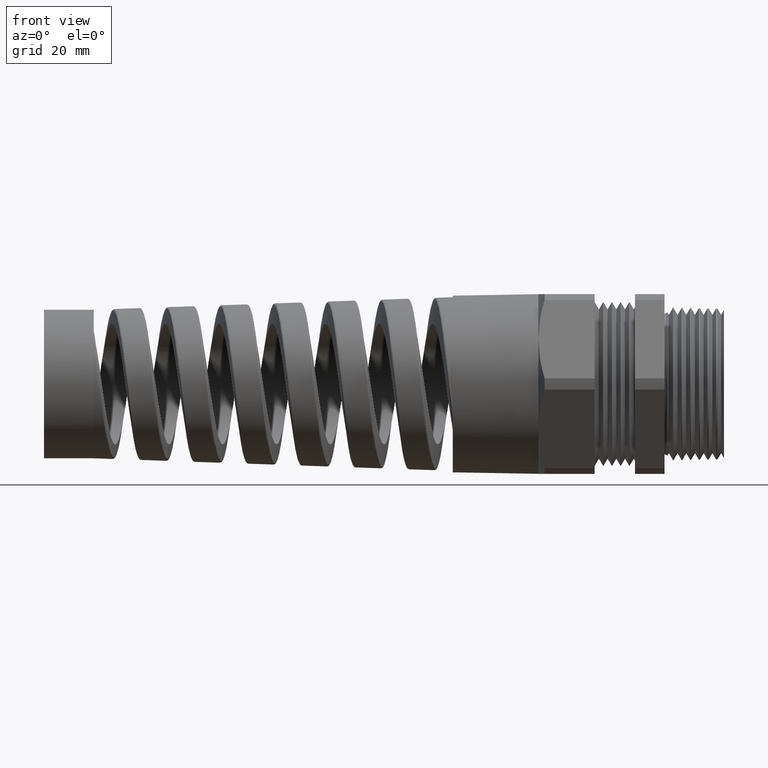
[diagram: clean part render]
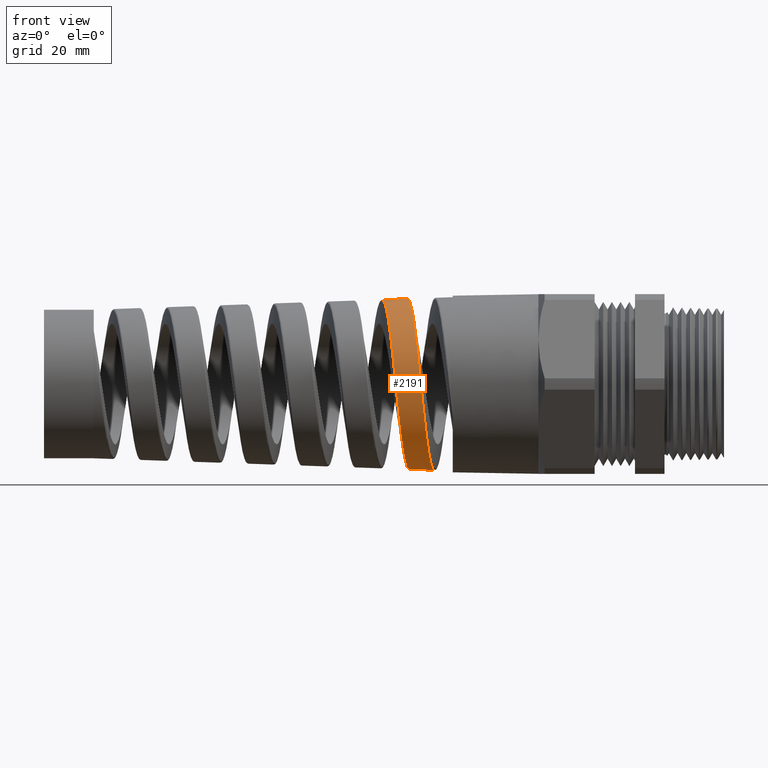
[diagram: same view with one face highlighted and labeled with its STEP entity id]
A machine part, front view. The second image highlights one B-rep face of the part: STEP entity #2191.
In plain terms, the highlighted conical surface has half-angle 2.001 deg.
Its self-contained STEP definition (entity closure, byte-faithful):
#1295 = VERTEX_POINT ( 'NONE', #3690 ) ;
#1320 = VERTEX_POINT ( 'NONE', #3689 ) ;
#1434 = EDGE_CURVE ( 'NONE', #1295, #1320, #4977, .T. ) ;
#2189 = EDGE_LOOP ( 'NONE', ( #2192, #6026, #6025, #6037 ) ) ;
#2191 = ADVANCED_FACE ( 'NONE', ( #10259 ), #10257, .T. ) ;
#2192 = ORIENTED_EDGE ( 'NONE', *, *, #1434, .F. ) ;
#2714 = VERTEX_POINT ( 'NONE', #11269 ) ;
#2724 = VERTEX_POINT ( 'NONE', #11374 ) ;
#2751 = EDGE_CURVE ( 'NONE', #2714, #2724, #11637, .T. ) ;
#3689 = CARTESIAN_POINT ( 'NONE',  ( -1.860031457584232100, 3.816265048397809600E-016, 0.6169013725348223600 ) ) ;
#3690 = CARTESIAN_POINT ( 'NONE',  ( -2.041595713994794400, 5.404285057037586800E-013, 0.6105590736741104400 ) ) ;
#4974 = DIRECTION ( 'NONE',  ( 0.9993904554178625300, 4.275258673359075800E-018, 0.03491013634572578300 ) ) ;
#4975 = VECTOR ( 'NONE', #4974, 39.37007874015748900 ) ;
#4976 = CARTESIAN_POINT ( 'NONE',  ( -0.9125000000000002000, 7.960204194457793000E-017, 0.6499999999999998000 ) ) ;
#4977 = LINE ( 'NONE', #4976, #4975 ) ;
#6016 = EDGE_CURVE ( 'NONE', #2724, #1320, #12136, .T. ) ;
#6019 = EDGE_CURVE ( 'NONE', #1295, #2714, #12163, .T. ) ;
#6025 = ORIENTED_EDGE ( 'NONE', *, *, #2751, .T. ) ;
#6026 = ORIENTED_EDGE ( 'NONE', *, *, #6019, .T. ) ;
#6037 = ORIENTED_EDGE ( 'NONE', *, *, #6016, .T. ) ;
#10254 = DIRECTION ( 'NONE',  ( 0.0000000000000000000, 0.0000000000000000000, -1.000000000000000000 ) ) ;
#10255 = DIRECTION ( 'NONE',  ( 1.000000000000000000, 0.0000000000000000000, 0.0000000000000000000 ) ) ;
#10256 = AXIS2_PLACEMENT_3D ( 'NONE', #10258, #10255, #10254 ) ;
#10257 = CONICAL_SURFACE ( 'NONE', #10256, 0.6499999999999998000, 0.03491723117042443800 ) ;
#10258 = CARTESIAN_POINT ( 'NONE',  ( -0.9125000000000002000, 0.0000000000000000000, 0.0000000000000000000 ) ) ;
#10259 = FACE_OUTER_BOUND ( 'NONE', #2189, .T. ) ;
#11269 = CARTESIAN_POINT ( 'NONE',  ( -1.847675430216727100, 1.499156792690667000E-016, -0.6173329862226985000 ) ) ;
#11374 = CARTESIAN_POINT ( 'NONE',  ( -1.666082610483241800, -5.664522266744173700E-013, -0.6236762828410858900 ) ) ;
#11468 = CARTESIAN_POINT ( 'NONE',  ( -1.728471664641059600, -0.5267763392081741300, -0.3304148715152940300 ) ) ;
#11469 = CARTESIAN_POINT ( 'NONE',  ( -1.722448705378324600, -0.4930644986935345300, -0.3808448498656335500 ) ) ;
#11637 = LINE ( 'NONE', #11719, #11718 ) ;
#11717 = DIRECTION ( 'NONE',  ( 0.9993904554178625300, 0.0000000000000000000, -0.03491013634572578300 ) ) ;
#11718 = VECTOR ( 'NONE', #11717, 39.37007874015748900 ) ;
#11719 = CARTESIAN_POINT ( 'NONE',  ( -0.9125000000000002000, 0.0000000000000000000, -0.6499999999999998000 ) ) ;
#11758 = CARTESIAN_POINT ( 'NONE',  ( -1.742631796956128700, -0.5885549032456304200, -0.2022251774938682600 ) ) ;
#11760 = CARTESIAN_POINT ( 'NONE',  ( -1.736578143625106000, -0.5652480150011247600, -0.2584825724395086700 ) ) ;
#11761 = CARTESIAN_POINT ( 'NONE',  ( -1.734539435105767700, -0.5564701984895908900, -0.2770419630630266400 ) ) ;
#11798 = CARTESIAN_POINT ( 'NONE',  ( -1.730484039348056300, -0.5372190819630802100, -0.3130224154334005900 ) ) ;
#12120 = CARTESIAN_POINT ( 'NONE',  ( -1.718451794485263300, -0.4674343389328120000, -0.4121514692766922200 ) ) ;
#12121 = CARTESIAN_POINT ( 'NONE',  ( -1.712365573981226700, -0.4241153060394268800, -0.4555236657616942300 ) ) ;
#12122 = CARTESIAN_POINT ( 'NONE',  ( -1.710334611555485600, -0.4089428994683624900, -0.4692795736045588000 ) ) ;
#12123 = CARTESIAN_POINT ( 'NONE',  ( -1.706310044807840800, -0.3776020432339837800, -0.4950244973315542400 ) ) ;
#12124 = CARTESIAN_POINT ( 'NONE',  ( -1.704307596544266400, -0.3613709062349941800, -0.5070774394052465200 ) ) ;
#12125 = CARTESIAN_POINT ( 'NONE',  ( -1.700301427241697400, -0.3278021576401986000, -0.5295624691940955500 ) ) ;
#12126 = CARTESIAN_POINT ( 'NONE',  ( -1.698297760841855700, -0.3104645536822029900, -0.5399945777537554800 ) ) ;
#12127 = CARTESIAN_POINT ( 'NONE',  ( -1.694269257517449800, -0.2746663204652860500, -0.5592101820937768200 ) ) ;
#12128 = CARTESIAN_POINT ( 'NONE',  ( -1.692233174902068700, -0.2560991532685572000, -0.5680335686453036300 ) ) ;
#12129 = CARTESIAN_POINT ( 'NONE',  ( -1.686170363617713400, -0.1996469148310838200, -0.5915234923648924300 ) ) ;
#12130 = CARTESIAN_POINT ( 'NONE',  ( -1.682184242790040400, -0.1609771524271892700, -0.6033204238952739600 ) ) ;
#12131 = CARTESIAN_POINT ( 'NONE',  ( -1.676172085240506600, -0.1014645694751628900, -0.6153431056167481000 ) ) ;
#12132 = CARTESIAN_POINT ( 'NONE',  ( -1.674162274620616000, -0.08137399029756951800, -0.6183986251800955800 ) ) ;
#12133 = CARTESIAN_POINT ( 'NONE',  ( -1.670110767461273800, -0.04067237418051977000, -0.6225438261933495800 ) ) ;
#12134 = CARTESIAN_POINT ( 'NONE',  ( -1.668089547207953800, -0.02026765670257023300, -0.6236061776741458300 ) ) ;
#12135 = CARTESIAN_POINT ( 'NONE',  ( -1.666082610483241800, -5.664522266744173700E-013, -0.6236762828410858900 ) ) ;
#12136 = B_SPLINE_CURVE_WITH_KNOTS ( 'NONE', 3,
 ( #12135, #12134, #12133, #12132, #12131, #12130, #12129, #12128, #12127, #12126, #12125, #12124, #12123, #12122, #12121, #12120, #11469, #11468, #11798, #11761, #11760, #11758, #12214, #12212, #12210, #12209, #12207, #12205, #12204, #12203, #12202, #12200, #12198, #12197, #12196, #12194, #12193, #12191, #12190, #12188, #12186, #12184, #12183, #12182, #12181, #12178, #12176, #12174, #12172, #12171, #12170 ),
 .UNSPECIFIED., .F., .F.,
 ( 4, 2, 2, 2, 2, 2, 2, 2, 2, 2, 2, 2, 2, 2, 2, 2, 1, 2, 2, 2, 2, 2, 2, 2, 2, 4 ),
 ( 0.03476775380284748100, 0.03632682890415668600, 0.03788590400546588300, 0.04100405420808428400, 0.04256312930939348100, 0.04412220441070268500, 0.04568127951201188300, 0.04724035461332108700, 0.05035850481593948100, 0.05191757991724868500, 0.05347665501855788200, 0.05659480522117628400, 0.05815388032248548800, 0.05971295542379468500, 0.06283110562641308600, 0.06439018072772229000, 0.06594925582903149500, 0.06750833093034069900, 0.06906740603164990300, 0.07218555623426828300, 0.07374463133557748700, 0.07530370643688669200, 0.07842185663950508600, 0.07998093174081429000, 0.08154000684212349400, 0.08465815704474188900 ),
 .UNSPECIFIED. ) ;
#12155 = CARTESIAN_POINT ( 'NONE',  ( -2.021308781272115800, -0.1977745529507813900, 0.5797916605593742600 ) ) ;
#12156 = CARTESIAN_POINT ( 'NONE',  ( -2.025332263250286600, -0.1594631673393138400, 0.5913162161763064800 ) ) ;
#12157 = CARTESIAN_POINT ( 'NONE',  ( -2.031405801397254200, -0.1004652032306302000, 0.6029308765581108400 ) ) ;
#12158 = CARTESIAN_POINT ( 'NONE',  ( -2.033437105056473500, -0.08054230358507955000, 0.6058503917334061600 ) ) ;
#12160 = CARTESIAN_POINT ( 'NONE',  ( -2.037535365639783400, -0.04016622743107645100, 0.6097159666193372500 ) ) ;
#12161 = CARTESIAN_POINT ( 'NONE',  ( -2.039568790189898500, -0.02004476661131391500, 0.6106298770183142800 ) ) ;
#12162 = CARTESIAN_POINT ( 'NONE',  ( -2.041595713994794400, 5.404285057037586800E-013, 0.6105590736741104400 ) ) ;
#12163 = B_SPLINE_CURVE_WITH_KNOTS ( 'NONE', 3,
 ( #12162, #12161, #12160, #12158, #12157, #12156, #12155, #12273, #12272, #12271, #12270, #12269, #12267, #12266, #12264, #12263, #12261, #12259, #12258, #12257, #12255, #12254, #12253, #12252, #12251, #12250, #12249, #12248, #12247, #12246, #12245, #12244, #12243, #12242, #12240, #12239, #12237, #12236, #12235, #12234, #12233, #12231, #12230, #12229, #12228, #12227, #12226, #12224, #12222, #12221, #12220 ),
 .UNSPECIFIED., .F., .F.,
 ( 4, 2, 2, 2, 2, 2, 2, 2, 2, 2, 2, 2, 2, 2, 2, 2, 1, 2, 2, 2, 2, 2, 2, 2, 2, 4 ),
 ( 0.4987456061537903200, 0.5002925527902029000, 0.5018394994266154300, 0.5049333926994404900, 0.5064803393358530100, 0.5080272859722655400, 0.5095742326086780700, 0.5111211792450906000, 0.5142150725179156500, 0.5157620191543281800, 0.5173089657907407000, 0.5204028590635657600, 0.5219498056999784000, 0.5234967523363909200, 0.5265906456092159800, 0.5281375922456285100, 0.5296845388820410300, 0.5312314855184535600, 0.5327784321548660900, 0.5358723254276911400, 0.5374192720641036700, 0.5389662187005162000, 0.5420601119733413600, 0.5436070586097538900, 0.5451540052461664200, 0.5482478985189914700 ),
 .UNSPECIFIED. ) ;
#12170 = CARTESIAN_POINT ( 'NONE',  ( -1.860031457584232100, 3.816265048397809600E-016, 0.6169013725348223600 ) ) ;
#12171 = CARTESIAN_POINT ( 'NONE',  ( -1.855935441991919400, -0.04094224672546787500, 0.6170444522110657400 ) ) ;
#12172 = CARTESIAN_POINT ( 'NONE',  ( -1.851893588192659300, -0.08134658434559570400, 0.6131344839010881600 ) ) ;
#12174 = CARTESIAN_POINT ( 'NONE',  ( -1.845829550200318800, -0.1408287589147517700, 0.6014608491014082900 ) ) ;
#12176 = CARTESIAN_POINT ( 'NONE',  ( -1.843806928828773300, -0.1604868928505278300, 0.5965943619584778100 ) ) ;
#12178 = CARTESIAN_POINT ( 'NONE',  ( -1.839739766540324300, -0.1994557138718594000, 0.5848707237384683800 ) ) ;
#12181 = CARTESIAN_POINT ( 'NONE',  ( -1.837686528207244800, -0.2188409920077849200, 0.5779735368032272700 ) ) ;
#12182 = CARTESIAN_POINT ( 'NONE',  ( -1.831588869102236200, -0.2752557939946337400, 0.5546924782510753700 ) ) ;
#12183 = CARTESIAN_POINT ( 'NONE',  ( -1.827569520792521300, -0.3109111283528532800, 0.5356714751265820900 ) ) ;
#12184 = CARTESIAN_POINT ( 'NONE',  ( -1.821497807231888600, -0.3614898695997542700, 0.5019615861440528400 ) ) ;
#12186 = CARTESIAN_POINT ( 'NONE',  ( -1.819463287311649900, -0.3778955359293603700, 0.4898281450304991000 ) ) ;
#12188 = CARTESIAN_POINT ( 'NONE',  ( -1.815377982144925000, -0.4095517755324559700, 0.4638755072363704400 ) ) ;
#12190 = CARTESIAN_POINT ( 'NONE',  ( -1.813352131183493000, -0.4246102048709360400, 0.4502195672037643300 ) ) ;
#12191 = CARTESIAN_POINT ( 'NONE',  ( -1.807292668944461500, -0.4675505590582193500, 0.4072824451775333700 ) ) ;
#12193 = CARTESIAN_POINT ( 'NONE',  ( -1.803276425606013200, -0.4932184035470932900, 0.3760504101713616500 ) ) ;
#12194 = CARTESIAN_POINT ( 'NONE',  ( -1.797179278114785300, -0.5271872100590424500, 0.3252227806613484700 ) ) ;
#12196 = CARTESIAN_POINT ( 'NONE',  ( -1.795132413805483400, -0.5377498360946180200, 0.3075830930067842100 ) ) ;
#12197 = CARTESIAN_POINT ( 'NONE',  ( -1.791082848691518700, -0.5568814393866189400, 0.2717360839546496500 ) ) ;
#12198 = CARTESIAN_POINT ( 'NONE',  ( -1.787054850304021600, -0.5741530792282135700, 0.2351373813048428200 ) ) ;
#12200 = CARTESIAN_POINT ( 'NONE',  ( -1.783029570908737100, -0.5877669410262507100, 0.1970646938598184500 ) ) ;
#12202 = CARTESIAN_POINT ( 'NONE',  ( -1.778987260198237300, -0.5995305753131016100, 0.1582484023486151500 ) ) ;
#12203 = CARTESIAN_POINT ( 'NONE',  ( -1.776948718273416300, -0.6045041519239872100, 0.1383786428368476200 ) ) ;
#12204 = CARTESIAN_POINT ( 'NONE',  ( -1.770845013762490000, -0.6164148608599011600, 0.07825174573106556700 ) ) ;
#12205 = CARTESIAN_POINT ( 'NONE',  ( -1.766838814128771200, -0.6203122512353416200, 0.03798159385492678300 ) ) ;
#12207 = CARTESIAN_POINT ( 'NONE',  ( -1.760800596576513200, -0.6202825662259485700, -0.02268124522544262900 ) ) ;
#12209 = CARTESIAN_POINT ( 'NONE',  ( -1.758783321426665500, -0.6192863476451571100, -0.04294546681374428900 ) ) ;
#12210 = CARTESIAN_POINT ( 'NONE',  ( -1.754721295324778200, -0.6152670478528906600, -0.08356102162092164700 ) ) ;
#12212 = CARTESIAN_POINT ( 'NONE',  ( -1.752681897095599300, -0.6122358394601930000, -0.1038612078920123400 ) ) ;
#12214 = CARTESIAN_POINT ( 'NONE',  ( -1.746627865675787400, -0.6003032007518684900, -0.1635671250143175000 ) ) ;
#12220 = CARTESIAN_POINT ( 'NONE',  ( -1.847675430216727100, 1.499156792690667000E-016, -0.6173329862226985000 ) ) ;
#12221 = CARTESIAN_POINT ( 'NONE',  ( -1.851726996441193800, -0.04052911903221234600, -0.6171914592263751900 ) ) ;
#12222 = CARTESIAN_POINT ( 'NONE',  ( -1.855714716669805800, -0.08039648424230254300, -0.6130990888000795700 ) ) ;
#12224 = CARTESIAN_POINT ( 'NONE',  ( -1.861720817320107400, -0.1392302592103509000, -0.6012566939517693900 ) ) ;
#12226 = CARTESIAN_POINT ( 'NONE',  ( -1.863726632609460800, -0.1586791783984644600, -0.5963517423963817800 ) ) ;
#12227 = CARTESIAN_POINT ( 'NONE',  ( -1.867763419468245500, -0.1972429095368320200, -0.5845817255203870100 ) ) ;
#12228 = CARTESIAN_POINT ( 'NONE',  ( -1.869798765820694500, -0.2163988121340127700, -0.5776874623092247400 ) ) ;
#12229 = CARTESIAN_POINT ( 'NONE',  ( -1.875840422730834100, -0.2721201636934504300, -0.5544871757020588500 ) ) ;
#12230 = CARTESIAN_POINT ( 'NONE',  ( -1.879826207862038700, -0.3073672525707749100, -0.5355840103782093500 ) ) ;
#12231 = CARTESIAN_POINT ( 'NONE',  ( -1.885858818690185500, -0.3573984456172575900, -0.5021194068497923900 ) ) ;
#12233 = CARTESIAN_POINT ( 'NONE',  ( -1.887885279037962100, -0.3736512862918646700, -0.4900635187669305500 ) ) ;
#12234 = CARTESIAN_POINT ( 'NONE',  ( -1.891943463111704200, -0.4049319631500193400, -0.4643630430242112700 ) ) ;
#12235 = CARTESIAN_POINT ( 'NONE',  ( -1.893956377507383500, -0.4198197117109456800, -0.4508427619232123200 ) ) ;
#12236 = CARTESIAN_POINT ( 'NONE',  ( -1.899979267691799000, -0.4622923437449118500, -0.4083357870944021000 ) ) ;
#12237 = CARTESIAN_POINT ( 'NONE',  ( -1.903973594951692700, -0.4877069604123937000, -0.3774210455964650500 ) ) ;
#12239 = CARTESIAN_POINT ( 'NONE',  ( -1.910049788765620300, -0.5213690958138950100, -0.3271026348872939600 ) ) ;
#12240 = CARTESIAN_POINT ( 'NONE',  ( -1.912089406176626900, -0.5318301295170222400, -0.3096575787818827700 ) ) ;
#12242 = CARTESIAN_POINT ( 'NONE',  ( -1.916124342884096600, -0.5507903848608449700, -0.2742037335442923400 ) ) ;
#12243 = CARTESIAN_POINT ( 'NONE',  ( -1.920138394234101300, -0.5679207360848239600, -0.2380016030391462800 ) ) ;
#12244 = CARTESIAN_POINT ( 'NONE',  ( -1.924152228146709200, -0.5814463631418107500, -0.2003298854674683500 ) ) ;
#12245 = CARTESIAN_POINT ( 'NONE',  ( -1.928185646775820100, -0.5931458643131770600, -0.1619158318751517100 ) ) ;
#12246 = CARTESIAN_POINT ( 'NONE',  ( -1.930221937553320100, -0.5981004625664313500, -0.1422417911742674400 ) ) ;
#12247 = CARTESIAN_POINT ( 'NONE',  ( -1.936317373396520700, -0.6099760400319885800, -0.08276801561338875700 ) ) ;
#12248 = CARTESIAN_POINT ( 'NONE',  ( -1.940320746990370500, -0.6139018388149546400, -0.04291945796664047700 ) ) ;
#12249 = CARTESIAN_POINT ( 'NONE',  ( -1.946356838792993900, -0.6139731918279931500, 0.01713195275991738100 ) ) ;
#12250 = CARTESIAN_POINT ( 'NONE',  ( -1.948374105907504400, -0.6130205044773201500, 0.03719584700479872800 ) ) ;
#12251 = CARTESIAN_POINT ( 'NONE',  ( -1.952439278773661500, -0.6091057718483845500, 0.07741784295007288200 ) ) ;
#12252 = CARTESIAN_POINT ( 'NONE',  ( -1.954480266610799900, -0.6061383605779605600, 0.09750505516197188700 ) ) ;
#12253 = CARTESIAN_POINT ( 'NONE',  ( -1.960543874056840800, -0.5944203436294404100, 0.1566064997952395200 ) ) ;
#12254 = CARTESIAN_POINT ( 'NONE',  ( -1.964546994805632200, -0.5828468671691396900, 0.1948877722121109800 ) ) ;
#12255 = CARTESIAN_POINT ( 'NONE',  ( -1.970616081667255800, -0.5598328922550553900, 0.2506136737035781200 ) ) ;
#12257 = CARTESIAN_POINT ( 'NONE',  ( -1.972661249959391000, -0.5511565972309859800, 0.2690028023508505000 ) ) ;
#12258 = CARTESIAN_POINT ( 'NONE',  ( -1.976728526184454000, -0.5321381941117784300, 0.3046159703066684800 ) ) ;
#12259 = CARTESIAN_POINT ( 'NONE',  ( -1.978749128889578000, -0.5218161534323797500, 0.3218327035377999100 ) ) ;
#12261 = CARTESIAN_POINT ( 'NONE',  ( -1.984798145135032900, -0.4884751711787416200, 0.3717563778133573000 ) ) ;
#12263 = CARTESIAN_POINT ( 'NONE',  ( -1.988812778238564900, -0.4631040774898854700, 0.4027534413459389900 ) ) ;
#12264 = CARTESIAN_POINT ( 'NONE',  ( -1.994933918666944400, -0.4201733052953899900, 0.4456898313900453100 ) ) ;
#12266 = CARTESIAN_POINT ( 'NONE',  ( -1.996973057557980900, -0.4051652605963755900, 0.4592732247254787100 ) ) ;
#12267 = CARTESIAN_POINT ( 'NONE',  ( -2.001021548341693100, -0.3741293523275472400, 0.4847111513058186000 ) ) ;
#12269 = CARTESIAN_POINT ( 'NONE',  ( -2.003038047539977800, -0.3580506200234324100, 0.4966170788898953700 ) ) ;
#12270 = CARTESIAN_POINT ( 'NONE',  ( -2.007072649968780100, -0.3247838787638314700, 0.5188176406734424900 ) ) ;
#12271 = CARTESIAN_POINT ( 'NONE',  ( -2.009091065386681600, -0.3075959102213768300, 0.5291122777646136700 ) ) ;
#12272 = CARTESIAN_POINT ( 'NONE',  ( -2.013151336826328700, -0.2720913474308040400, 0.5480582547940596700 ) ) ;
#12273 = CARTESIAN_POINT ( 'NONE',  ( -2.015203769951733600, -0.2536754186068646600, 0.5567441074779432300 ) ) ;